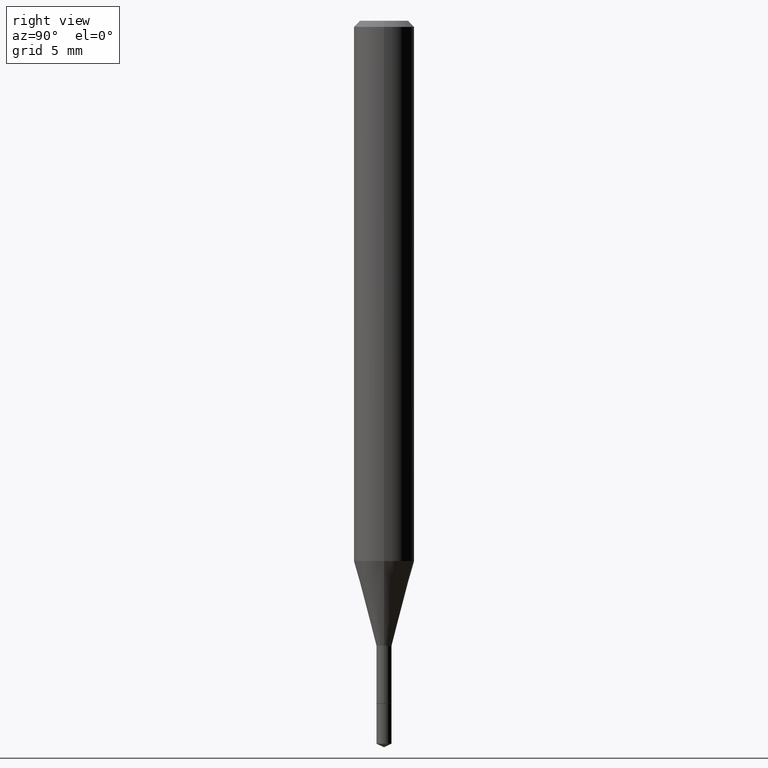
[diagram: clean part render]
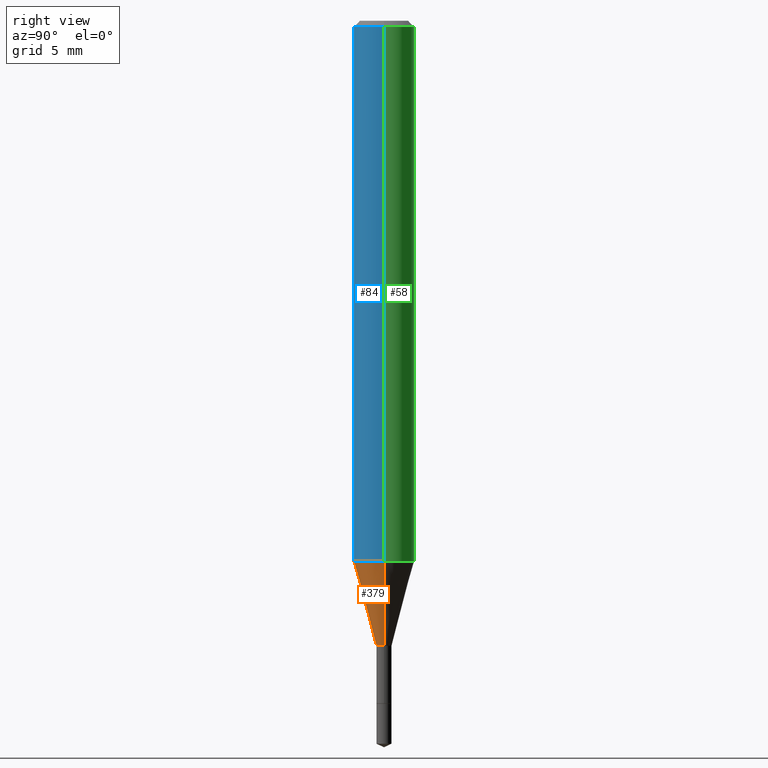
[diagram: same view with three faces highlighted in distinct colors, each labeled with its STEP entity id]
A machine part, right view with three faces highlighted in distinct colors.
Their STEP definitions:

[orange] entity #379 — the highlighted conical surface has half-angle 15 deg.
#1 = FACE_OUTER_BOUND ( 'NONE', #448, .T. ) ;
#9 = ORIENTED_EDGE ( 'NONE', *, *, #43, .F. ) ;
#10 = EDGE_CURVE ( 'NONE', #364, #250, #381, .T. ) ;
#22 = CARTESIAN_POINT ( 'NONE',  ( 0.01559999999999998367, -4.615040033682871428E-15, -1.290600000000000414 ) ) ;
#42 = CARTESIAN_POINT ( 'NONE',  ( 2.728083852494474973E-29, -3.894980724224650610E-15, -1.115566817125019927 ) ) ;
#43 = EDGE_CURVE ( 'NONE', #400, #358, #390, .T. ) ;
#45 = VECTOR ( 'NONE', #446, 39.37007874015748854 ) ;
#51 = AXIS2_PLACEMENT_3D ( 'NONE', #42, #87, #363 ) ;
#75 = CARTESIAN_POINT ( 'NONE',  ( 0.01559999999999998367, -4.615040033682871428E-15, -1.290600000000000414 ) ) ;
#78 = ORIENTED_EDGE ( 'NONE', *, *, #308, .T. ) ;
#87 = DIRECTION ( 'NONE',  ( -2.445468806185136597E-29, 3.491481338843145583E-15, 1.000000000000000000 ) ) ;
#96 = VECTOR ( 'NONE', #302, 39.37007874015748854 ) ;
#121 = DIRECTION ( 'NONE',  ( 1.000000000000000000, -6.982962677686290376E-15, 0.000000000000000000 ) ) ;
#136 = DIRECTION ( 'NONE',  ( -2.445468806185136597E-29, 3.491481338843145583E-15, 1.000000000000000000 ) ) ;
#160 = DIRECTION ( 'NONE',  ( -2.445468806185136597E-29, 3.491481338843145583E-15, 1.000000000000000000 ) ) ;
#164 = EDGE_CURVE ( 'NONE', #364, #400, #326, .T. ) ;
#195 = CARTESIAN_POINT ( 'NONE',  ( 0.06250000000000015266, -4.331415891580043857E-15, -1.115566817125019927 ) ) ;
#218 = ORIENTED_EDGE ( 'NONE', *, *, #164, .F. ) ;
#229 = CARTESIAN_POINT ( 'NONE',  ( -0.01559999999999998367, -4.602829714726614675E-15, -1.290600000000000414 ) ) ;
#250 = VERTEX_POINT ( 'NONE', #22 ) ;
#281 = CARTESIAN_POINT ( 'NONE',  ( 3.156122041262538513E-29, -4.506105815910965661E-15, -1.290600000000000414 ) ) ;
#302 = DIRECTION ( 'NONE',  ( 0.2588190451025212391, 1.565188264969622362E-15, 0.9659258262890679791 ) ) ;
#303 = AXIS2_PLACEMENT_3D ( 'NONE', #343, #160, #121 ) ;
#308 = EDGE_CURVE ( 'NONE', #250, #358, #385, .T. ) ;
#318 = DIRECTION ( 'NONE',  ( 1.000000000000000000, -6.982962677686290376E-15, 0.000000000000000000 ) ) ;
#326 = LINE ( 'NONE', #378, #45 ) ;
#343 = CARTESIAN_POINT ( 'NONE',  ( 3.156122041262538513E-29, -4.506105815910965661E-15, -1.290600000000000414 ) ) ;
#358 = VERTEX_POINT ( 'NONE', #195 ) ;
#363 = DIRECTION ( 'NONE',  ( 1.000000000000000000, -6.982962677686270655E-15, 0.000000000000000000 ) ) ;
#364 = VERTEX_POINT ( 'NONE', #229 ) ;
#378 = CARTESIAN_POINT ( 'NONE',  ( -0.01559999999999998367, -4.395261149132390407E-15, -1.290600000000000414 ) ) ;
#379 = ADVANCED_FACE ( 'NONE', ( #1 ), #397, .T. ) ;
#381 = CIRCLE ( 'NONE', #472, 0.01559999999999998367 ) ;
#385 = LINE ( 'NONE', #75, #96 ) ;
#390 = CIRCLE ( 'NONE', #51, 0.06250000000000013878 ) ;
#397 = CONICAL_SURFACE ( 'NONE', #303, 0.01559999999999998367, 0.2617993877991499629 ) ;
#400 = VERTEX_POINT ( 'NONE', #427 ) ;
#427 = CARTESIAN_POINT ( 'NONE',  ( -0.06250000000000015266, -3.450891514374587205E-15, -1.115566817125019927 ) ) ;
#446 = DIRECTION ( 'NONE',  ( -0.2588190451025212391, 5.211531920934549464E-15, 0.9659258262890679791 ) ) ;
#448 = EDGE_LOOP ( 'NONE', ( #218, #458, #78, #9 ) ) ;
#458 = ORIENTED_EDGE ( 'NONE', *, *, #10, .T. ) ;
#472 = AXIS2_PLACEMENT_3D ( 'NONE', #281, #136, #318 ) ;

[blue] entity #84 — the highlighted cylindrical surface (edge-blend (fillet) strip) has radius 1.5875 mm, axis along (-0, 0, 1).
#19 = ORIENTED_EDGE ( 'NONE', *, *, #292, .T. ) ;
#25 = CIRCLE ( 'NONE', #382, 0.06250000000000000000 ) ;
#27 = VERTEX_POINT ( 'NONE', #56 ) ;
#42 = CARTESIAN_POINT ( 'NONE',  ( 2.728083852494474973E-29, -3.894980724224650610E-15, -1.115566817125019927 ) ) ;
#43 = EDGE_CURVE ( 'NONE', #400, #358, #390, .T. ) ;
#51 = AXIS2_PLACEMENT_3D ( 'NONE', #42, #87, #363 ) ;
#56 = CARTESIAN_POINT ( 'NONE',  ( -0.06250000000000000000, -1.525222910630031483E-15, -0.01250000000000008570 ) ) ;
#62 = LINE ( 'NONE', #375, #412 ) ;
#67 = LINE ( 'NONE', #288, #309 ) ;
#84 = ADVANCED_FACE ( 'NONE', ( #177 ), #161, .T. ) ;
#85 = ORIENTED_EDGE ( 'NONE', *, *, #43, .T. ) ;
#87 = DIRECTION ( 'NONE',  ( -2.445468806185136597E-29, 3.491481338843145583E-15, 1.000000000000000000 ) ) ;
#122 = CARTESIAN_POINT ( 'NONE',  ( 0.000000000000000000, 0.000000000000000000, 0.000000000000000000 ) ) ;
#127 = EDGE_LOOP ( 'NONE', ( #416, #85, #19, #489 ) ) ;
#156 = CARTESIAN_POINT ( 'NONE',  ( 3.056836007731441853E-31, -4.364351673553962300E-17, -0.01250000000000008570 ) ) ;
#161 = CYLINDRICAL_SURFACE ( 'NONE', #211, 0.06250000000000006939 ) ;
#168 = EDGE_CURVE ( 'NONE', #400, #27, #67, .T. ) ;
#177 = FACE_OUTER_BOUND ( 'NONE', #127, .T. ) ;
#194 = CARTESIAN_POINT ( 'NONE',  ( 0.06250000000000000000, -4.800786840909313294E-16, -0.01250000000000008570 ) ) ;
#195 = CARTESIAN_POINT ( 'NONE',  ( 0.06250000000000015266, -4.331415891580043857E-15, -1.115566817125019927 ) ) ;
#211 = AXIS2_PLACEMENT_3D ( 'NONE', #122, #300, #453 ) ;
#217 = DIRECTION ( 'NONE',  ( -2.445468806185136877E-29, 3.491481338843145188E-15, 1.000000000000000000 ) ) ;
#288 = CARTESIAN_POINT ( 'NONE',  ( -0.06250000000000006939, 4.440892098500631092E-16, -3.074334431409319267E-30 ) ) ;
#292 = EDGE_CURVE ( 'NONE', #358, #349, #62, .T. ) ;
#300 = DIRECTION ( 'NONE',  ( -2.445468806185136597E-29, 3.491481338843145583E-15, 1.000000000000000000 ) ) ;
#309 = VECTOR ( 'NONE', #380, 39.37007874015748143 ) ;
#323 = EDGE_CURVE ( 'NONE', #27, #349, #25, .T. ) ;
#349 = VERTEX_POINT ( 'NONE', #194 ) ;
#358 = VERTEX_POINT ( 'NONE', #195 ) ;
#363 = DIRECTION ( 'NONE',  ( 1.000000000000000000, -6.982962677686270655E-15, 0.000000000000000000 ) ) ;
#375 = CARTESIAN_POINT ( 'NONE',  ( 0.06250000000000006939, -4.364351673553921624E-16, 3.047610484872463374E-30 ) ) ;
#380 = DIRECTION ( 'NONE',  ( -2.445468806185136877E-29, 3.491481338843145188E-15, 1.000000000000000000 ) ) ;
#382 = AXIS2_PLACEMENT_3D ( 'NONE', #156, #457, #455 ) ;
#390 = CIRCLE ( 'NONE', #51, 0.06250000000000013878 ) ;
#400 = VERTEX_POINT ( 'NONE', #427 ) ;
#412 = VECTOR ( 'NONE', #217, 39.37007874015748143 ) ;
#416 = ORIENTED_EDGE ( 'NONE', *, *, #168, .F. ) ;
#427 = CARTESIAN_POINT ( 'NONE',  ( -0.06250000000000015266, -3.450891514374587205E-15, -1.115566817125019927 ) ) ;
#453 = DIRECTION ( 'NONE',  ( 1.000000000000000000, -6.982962677686266711E-15, 4.876176775795935793E-29 ) ) ;
#455 = DIRECTION ( 'NONE',  ( 1.000000000000000000, -6.982962677686266711E-15, 0.000000000000000000 ) ) ;
#457 = DIRECTION ( 'NONE',  ( -2.445468806185136597E-29, 3.491481338843145583E-15, 1.000000000000000000 ) ) ;
#489 = ORIENTED_EDGE ( 'NONE', *, *, #323, .F. ) ;

[green] entity #58 — the highlighted cylindrical surface (edge-blend (fillet) strip) has radius 1.5875 mm, axis along (-0, 0, 1).
#27 = VERTEX_POINT ( 'NONE', #56 ) ;
#36 = CARTESIAN_POINT ( 'NONE',  ( 3.056836007731441853E-31, -4.364351673553962300E-17, -0.01250000000000008570 ) ) ;
#48 = EDGE_LOOP ( 'NONE', ( #260, #274, #176, #139 ) ) ;
#56 = CARTESIAN_POINT ( 'NONE',  ( -0.06250000000000000000, -1.525222910630031483E-15, -0.01250000000000008570 ) ) ;
#58 = ADVANCED_FACE ( 'NONE', ( #315 ), #367, .T. ) ;
#62 = LINE ( 'NONE', #375, #412 ) ;
#67 = LINE ( 'NONE', #288, #309 ) ;
#130 = AXIS2_PLACEMENT_3D ( 'NONE', #200, #383, #352 ) ;
#139 = ORIENTED_EDGE ( 'NONE', *, *, #292, .F. ) ;
#168 = EDGE_CURVE ( 'NONE', #400, #27, #67, .T. ) ;
#176 = ORIENTED_EDGE ( 'NONE', *, *, #206, .F. ) ;
#181 = AXIS2_PLACEMENT_3D ( 'NONE', #474, #469, #283 ) ;
#183 = DIRECTION ( 'NONE',  ( 1.000000000000000000, -6.982962677686266711E-15, 0.000000000000000000 ) ) ;
#194 = CARTESIAN_POINT ( 'NONE',  ( 0.06250000000000000000, -4.800786840909313294E-16, -0.01250000000000008570 ) ) ;
#195 = CARTESIAN_POINT ( 'NONE',  ( 0.06250000000000015266, -4.331415891580043857E-15, -1.115566817125019927 ) ) ;
#200 = CARTESIAN_POINT ( 'NONE',  ( 2.728083852494474973E-29, -3.894980724224650610E-15, -1.115566817125019927 ) ) ;
#206 = EDGE_CURVE ( 'NONE', #349, #27, #337, .T. ) ;
#217 = DIRECTION ( 'NONE',  ( -2.445468806185136877E-29, 3.491481338843145188E-15, 1.000000000000000000 ) ) ;
#258 = DIRECTION ( 'NONE',  ( -2.445468806185136597E-29, 3.491481338843145583E-15, 1.000000000000000000 ) ) ;
#260 = ORIENTED_EDGE ( 'NONE', *, *, #360, .T. ) ;
#274 = ORIENTED_EDGE ( 'NONE', *, *, #168, .T. ) ;
#283 = DIRECTION ( 'NONE',  ( 1.000000000000000000, -6.982962677686266711E-15, 4.876176775795935793E-29 ) ) ;
#288 = CARTESIAN_POINT ( 'NONE',  ( -0.06250000000000006939, 4.440892098500631092E-16, -3.074334431409319267E-30 ) ) ;
#292 = EDGE_CURVE ( 'NONE', #358, #349, #62, .T. ) ;
#309 = VECTOR ( 'NONE', #380, 39.37007874015748143 ) ;
#315 = FACE_OUTER_BOUND ( 'NONE', #48, .T. ) ;
#337 = CIRCLE ( 'NONE', #405, 0.06250000000000000000 ) ;
#349 = VERTEX_POINT ( 'NONE', #194 ) ;
#352 = DIRECTION ( 'NONE',  ( 1.000000000000000000, -6.982962677686270655E-15, 0.000000000000000000 ) ) ;
#358 = VERTEX_POINT ( 'NONE', #195 ) ;
#360 = EDGE_CURVE ( 'NONE', #358, #400, #391, .T. ) ;
#367 = CYLINDRICAL_SURFACE ( 'NONE', #181, 0.06250000000000006939 ) ;
#375 = CARTESIAN_POINT ( 'NONE',  ( 0.06250000000000006939, -4.364351673553921624E-16, 3.047610484872463374E-30 ) ) ;
#380 = DIRECTION ( 'NONE',  ( -2.445468806185136877E-29, 3.491481338843145188E-15, 1.000000000000000000 ) ) ;
#383 = DIRECTION ( 'NONE',  ( -2.445468806185136597E-29, 3.491481338843145583E-15, 1.000000000000000000 ) ) ;
#391 = CIRCLE ( 'NONE', #130, 0.06250000000000013878 ) ;
#400 = VERTEX_POINT ( 'NONE', #427 ) ;
#405 = AXIS2_PLACEMENT_3D ( 'NONE', #36, #258, #183 ) ;
#412 = VECTOR ( 'NONE', #217, 39.37007874015748143 ) ;
#427 = CARTESIAN_POINT ( 'NONE',  ( -0.06250000000000015266, -3.450891514374587205E-15, -1.115566817125019927 ) ) ;
#469 = DIRECTION ( 'NONE',  ( -2.445468806185136597E-29, 3.491481338843145583E-15, 1.000000000000000000 ) ) ;
#474 = CARTESIAN_POINT ( 'NONE',  ( 0.000000000000000000, 0.000000000000000000, 0.000000000000000000 ) ) ;